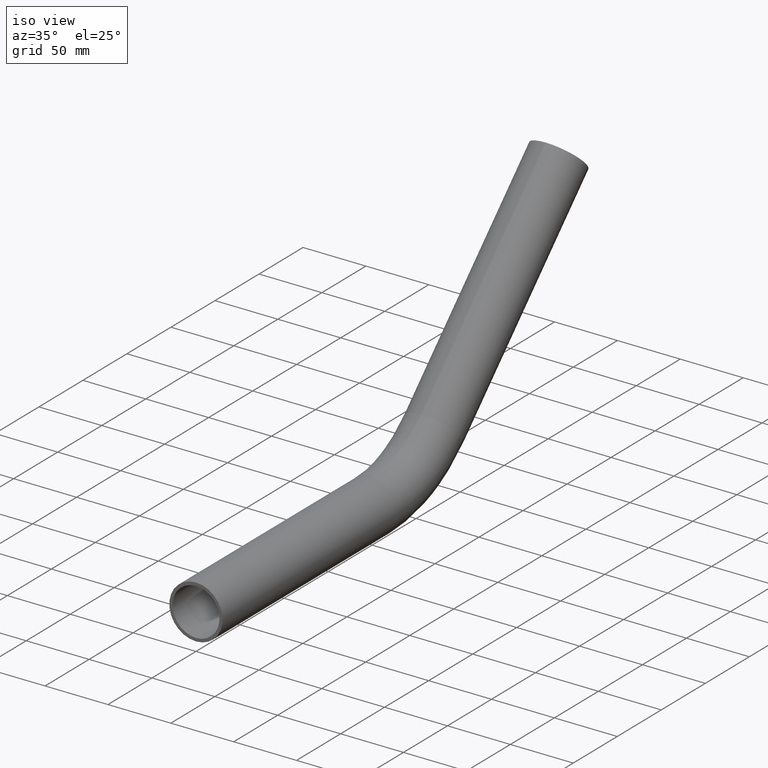
[diagram: clean part render]
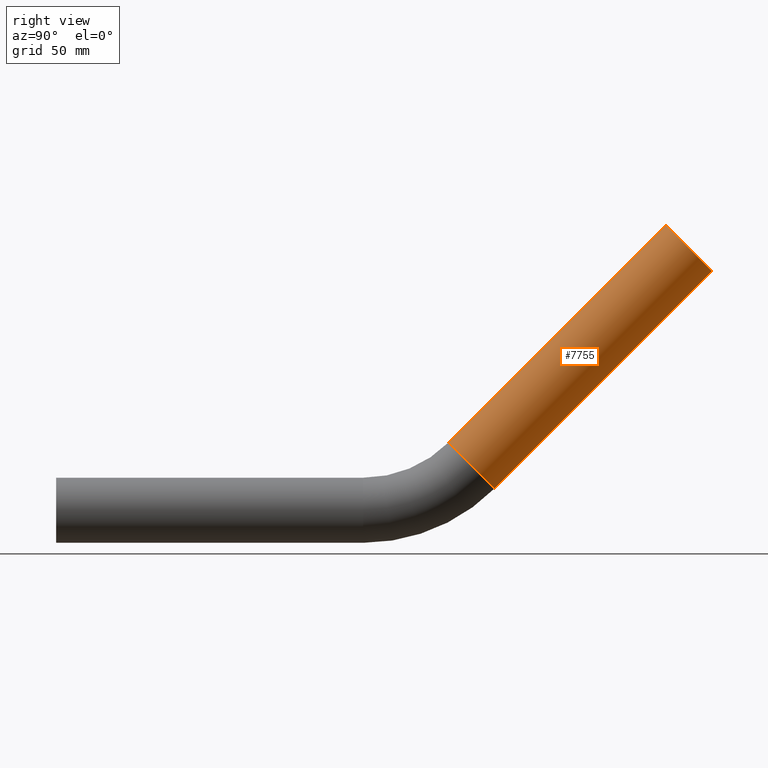
[diagram: tour spotlight — one face highlighted and labeled with its STEP entity id]
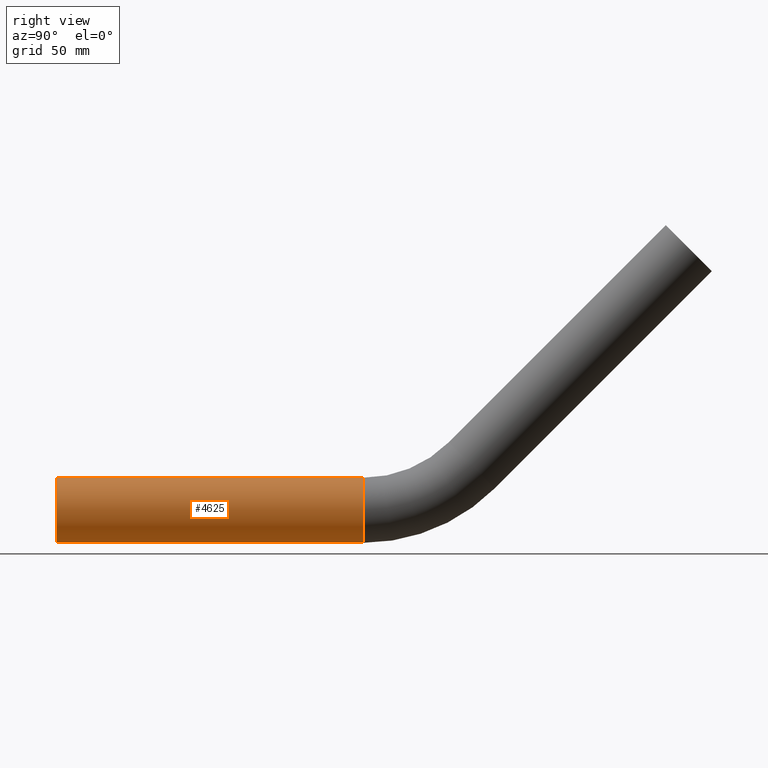
[diagram: tour spotlight — one face highlighted and labeled with its STEP entity id]
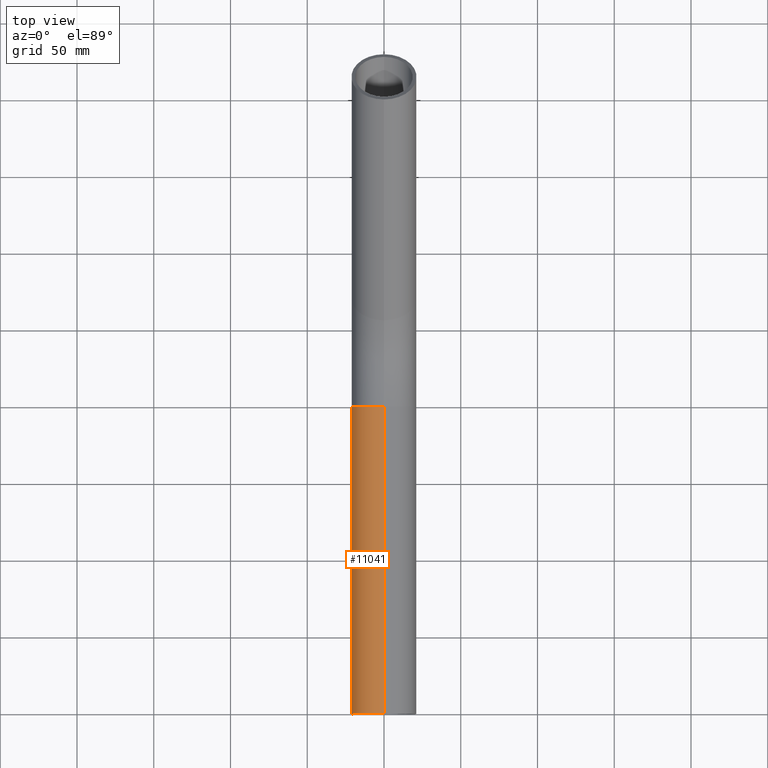
[diagram: tour spotlight — one face highlighted and labeled with its STEP entity id]
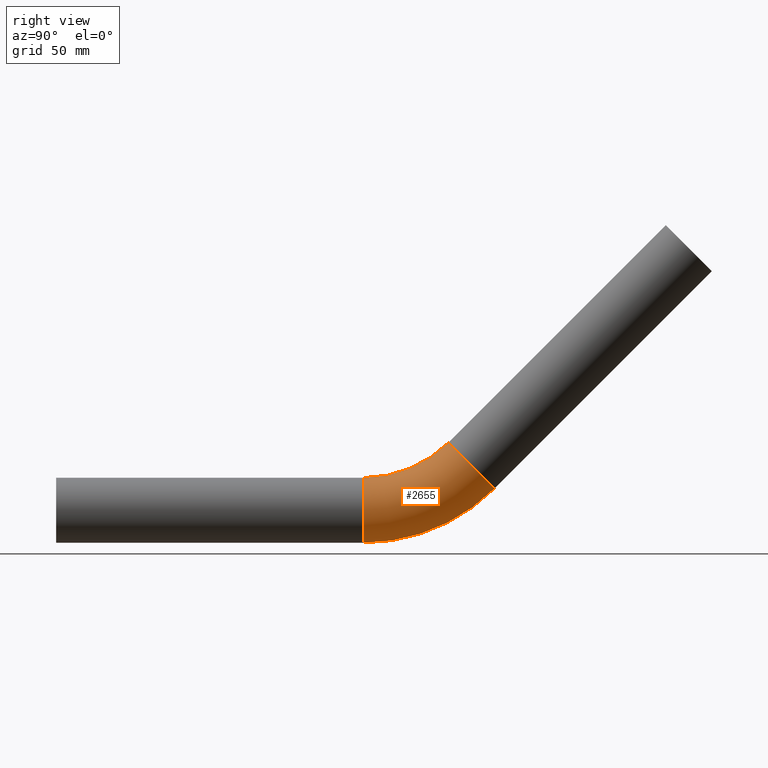
[diagram: tour spotlight — one face highlighted and labeled with its STEP entity id]
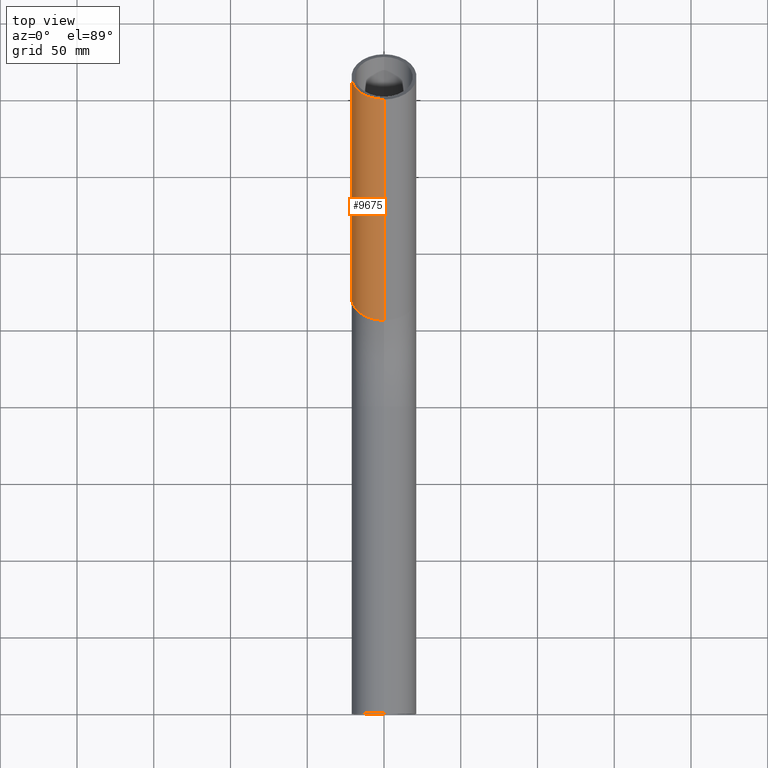
[diagram: tour spotlight — one face highlighted and labeled with its STEP entity id]
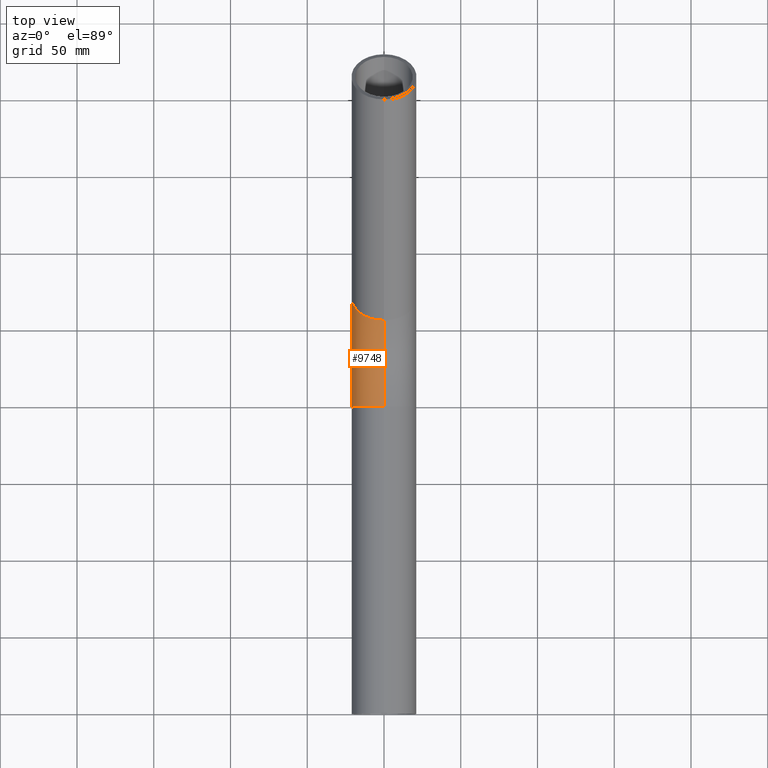
[diagram: tour spotlight — one face highlighted and labeled with its STEP entity id]
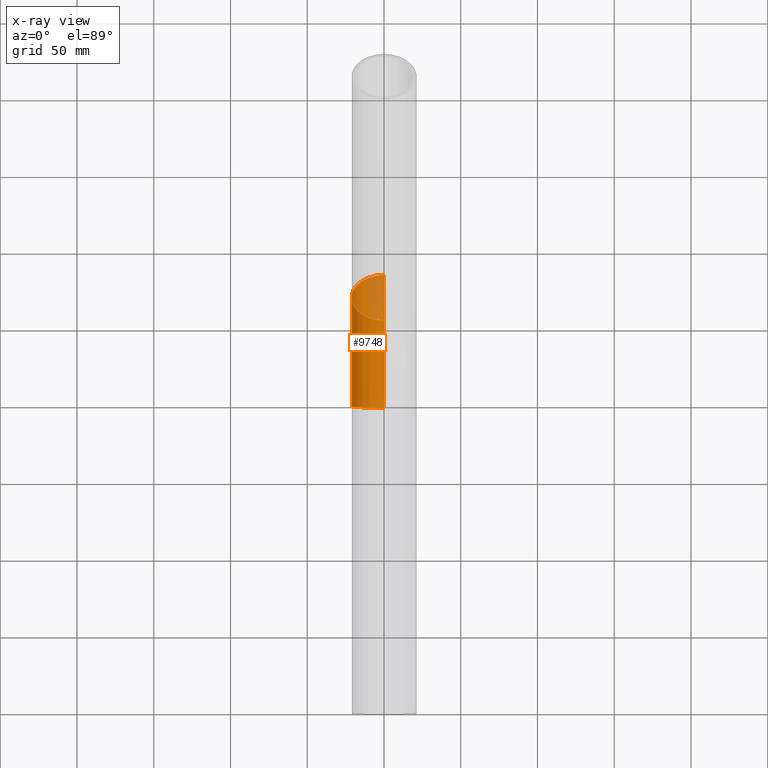
[diagram: x-ray of the same camera — body ghosted, this tour face saturated]
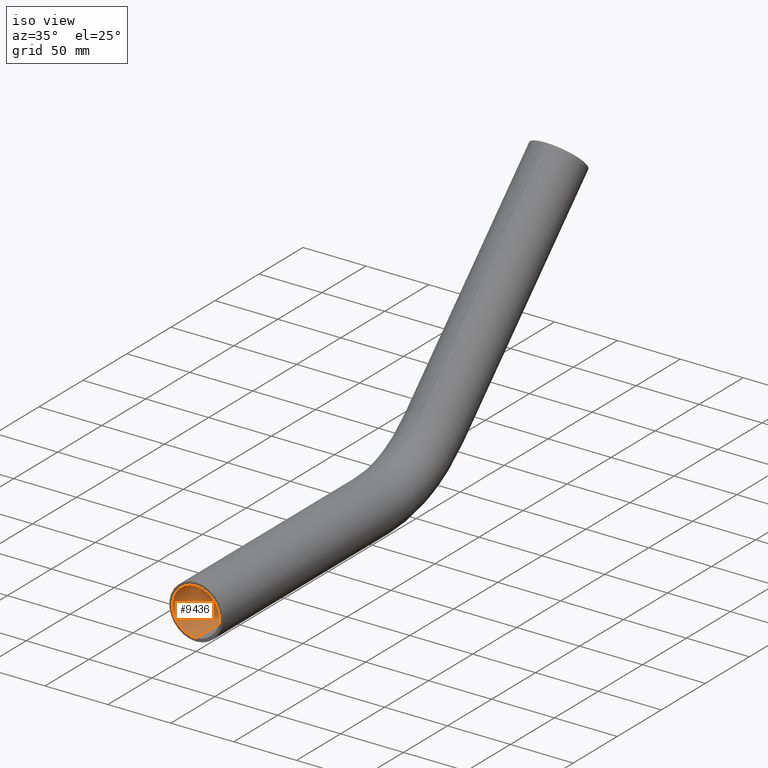
[diagram: tour spotlight — one face highlighted and labeled with its STEP entity id]
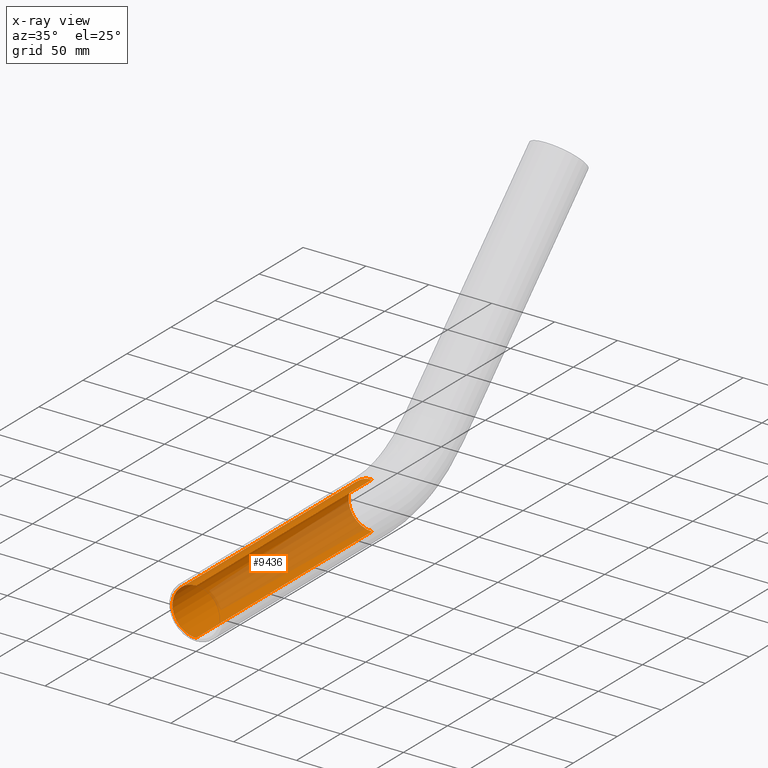
[diagram: x-ray of the same camera — body ghosted, this tour face saturated]
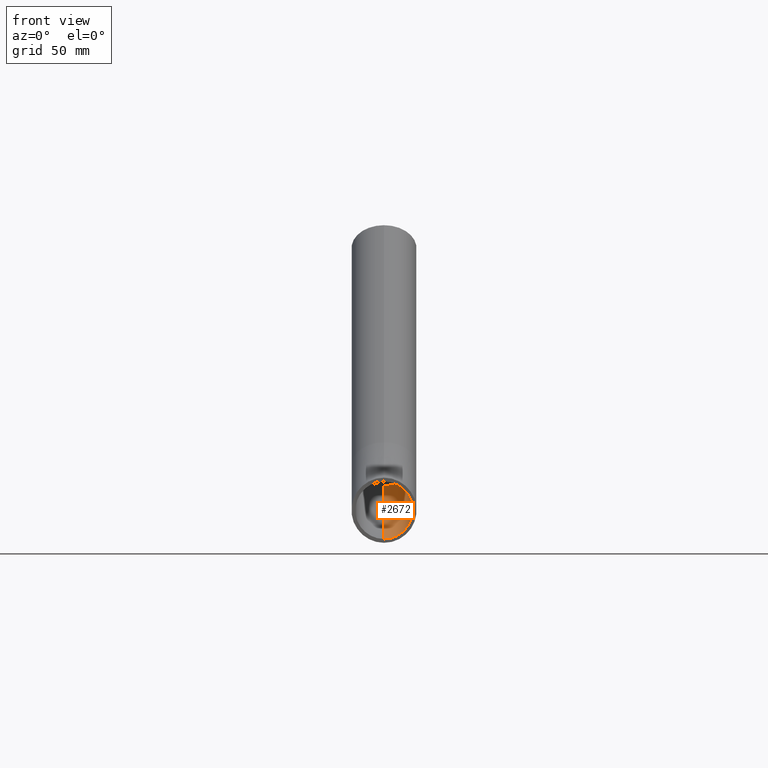
[diagram: tour spotlight — one face highlighted and labeled with its STEP entity id]
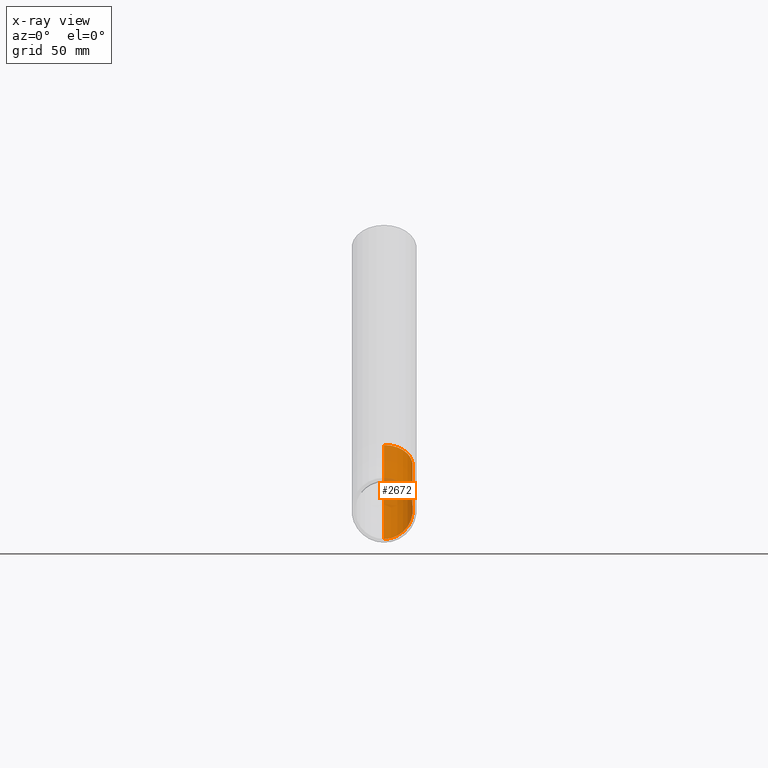
[diagram: x-ray of the same camera — body ghosted, this tour face saturated]
A machine part: a face-by-face anatomy tour. The part has 236 B-rep faces; the first image is the clean iso view, then the 8 largest visible faces are spotlighted one at a time (largest first), each with its STEP entity span.

Face 1 — right view, entity #7755. In plain terms, the highlighted cylindrical surface (edge-blend (fillet) strip) has radius 21.2 mm, axis along (0, 0.7071, 0.7071).
Definition (entity closure, byte-faithful):
#44 = DIRECTION ( 'NONE',  ( 0.0000000000000000000, 0.7071067811865462400, 0.7071067811865487900 ) ) ;
#277 = VERTEX_POINT ( 'NONE', #1705 ) ;
#735 = CYLINDRICAL_SURFACE ( 'NONE', #1268, 21.19999999999999200 ) ;
#907 = CARTESIAN_POINT ( 'NONE',  ( 0.0000000000000000000, 255.7200143575000800, 44.27998564250015100 ) ) ;
#972 = ORIENTED_EDGE ( 'NONE', *, *, #9818, .F. ) ;
#1268 = AXIS2_PLACEMENT_3D ( 'NONE', #3591, #9565, #3473 ) ;
#1705 = CARTESIAN_POINT ( 'NONE',  ( 2.596251214192388800E-015, 427.1226981171189400, 155.7200143575003300 ) ) ;
#1709 = VERTEX_POINT ( 'NONE', #907 ) ;
#2690 = CARTESIAN_POINT ( 'NONE',  ( 0.0000000000000000000, 412.1320343559641500, 170.7106781186551000 ) ) ;
#3097 = DIRECTION ( 'NONE',  ( 0.0000000000000000000, 0.7071067811865462400, 0.7071067811865489100 ) ) ;
#3151 = CARTESIAN_POINT ( 'NONE',  ( 0.0000000000000000000, 397.1413705948093000, 185.7013418798098900 ) ) ;
#3250 = AXIS2_PLACEMENT_3D ( 'NONE', #2690, #10488, #7892 ) ;
#3473 = DIRECTION ( 'NONE',  ( 0.0000000000000000000, -0.7071067811865483500, 0.7071067811865464600 ) ) ;
#3591 = CARTESIAN_POINT ( 'NONE',  ( 0.0000000000000000000, 270.7106781186549300, 29.28932188134538000 ) ) ;
#3634 = AXIS2_PLACEMENT_3D ( 'NONE', #10315, #44, #6842 ) ;
#3892 = ORIENTED_EDGE ( 'NONE', *, *, #8893, .T. ) ;
#4281 = EDGE_CURVE ( 'NONE', #5062, #277, #6091, .T. ) ;
#4723 = CIRCLE ( 'NONE', #3634, 21.19999999999999200 ) ;
#4960 = CARTESIAN_POINT ( 'NONE',  ( 2.596251214192388800E-015, 285.7013418798097200, 14.29865812019060400 ) ) ;
#5062 = VERTEX_POINT ( 'NONE', #3151 ) ;
#5687 = ORIENTED_EDGE ( 'NONE', *, *, #9980, .T. ) ;
#5926 = LINE ( 'NONE', #9144, #11074 ) ;
#6091 = CIRCLE ( 'NONE', #3250, 21.19999999999999900 ) ;
#6842 = DIRECTION ( 'NONE',  ( 0.0000000000000000000, -0.7071067811865483500, 0.7071067811865464600 ) ) ;
#7572 = FACE_OUTER_BOUND ( 'NONE', #8713, .T. ) ;
#7755 = ADVANCED_FACE ( 'NONE', ( #7572 ), #735, .T. ) ;
#7892 = DIRECTION ( 'NONE',  ( 0.0000000000000000000, -0.7071067811865481300, 0.7071067811865469100 ) ) ;
#8510 = VECTOR ( 'NONE', #3097, 999.9999999999998900 ) ;
#8713 = EDGE_LOOP ( 'NONE', ( #5687, #3892, #10666, #972 ) ) ;
#8893 = EDGE_CURVE ( 'NONE', #10981, #277, #10672, .T. ) ;
#9144 = CARTESIAN_POINT ( 'NONE',  ( 0.0000000000000000000, 255.7200143575000800, 44.27998564250015800 ) ) ;
#9565 = DIRECTION ( 'NONE',  ( 0.0000000000000000000, 0.7071067811865462400, 0.7071067811865487900 ) ) ;
#9818 = EDGE_CURVE ( 'NONE', #1709, #5062, #5926, .T. ) ;
#9916 = CARTESIAN_POINT ( 'NONE',  ( 2.596251214192388800E-015, 285.7013418798097200, 14.29865812019059800 ) ) ;
#9980 = EDGE_CURVE ( 'NONE', #1709, #10981, #4723, .T. ) ;
#10315 = CARTESIAN_POINT ( 'NONE',  ( 0.0000000000000000000, 270.7106781186549300, 29.28932188134538000 ) ) ;
#10488 = DIRECTION ( 'NONE',  ( 0.0000000000000000000, 0.7071067811865462400, 0.7071067811865487900 ) ) ;
#10666 = ORIENTED_EDGE ( 'NONE', *, *, #4281, .F. ) ;
#10672 = LINE ( 'NONE', #9916, #8510 ) ;
#10981 = VERTEX_POINT ( 'NONE', #4960 ) ;
#11049 = DIRECTION ( 'NONE',  ( 0.0000000000000000000, 0.7071067811865462400, 0.7071067811865489100 ) ) ;
#11074 = VECTOR ( 'NONE', #11049, 999.9999999999998900 ) ;

Face 2 — right view, entity #4625. In plain terms, the highlighted cylindrical surface (edge-blend (fillet) strip) has radius 21.2 mm, axis along (-0, -1, -0).
Definition (entity closure, byte-faithful):
#65 = EDGE_CURVE ( 'NONE', #196, #5295, #9588, .T. ) ;
#196 = VERTEX_POINT ( 'NONE', #9969 ) ;
#202 = AXIS2_PLACEMENT_3D ( 'NONE', #10364, #1795, #3518 ) ;
#216 = EDGE_CURVE ( 'NONE', #10763, #6479, #6740, .T. ) ;
#574 = EDGE_CURVE ( 'NONE', #10763, #196, #2602, .T. ) ;
#906 = DIRECTION ( 'NONE',  ( -0.0000000000000000000, -1.000000000000000000, -0.0000000000000000000 ) ) ;
#980 = CARTESIAN_POINT ( 'NONE',  ( 0.0000000000000000000, 200.0000000000000000, -21.19999999999999900 ) ) ;
#1276 = CARTESIAN_POINT ( 'NONE',  ( 2.596251214192388800E-015, 200.0000000000000000, 21.19999999999999900 ) ) ;
#1322 = ORIENTED_EDGE ( 'NONE', *, *, #574, .T. ) ;
#1771 = DIRECTION ( 'NONE',  ( 0.0000000000000000000, 0.0000000000000000000, -1.000000000000000000 ) ) ;
#1795 = DIRECTION ( 'NONE',  ( 0.0000000000000000000, 1.000000000000000000, 0.0000000000000000000 ) ) ;
#2241 = LINE ( 'NONE', #980, #8269 ) ;
#2474 = DIRECTION ( 'NONE',  ( 0.0000000000000000000, 0.0000000000000000000, 1.000000000000000000 ) ) ;
#2602 = LINE ( 'NONE', #1276, #7268 ) ;
#3518 = DIRECTION ( 'NONE',  ( 0.0000000000000000000, 0.0000000000000000000, 1.000000000000000000 ) ) ;
#4252 = CARTESIAN_POINT ( 'NONE',  ( 0.0000000000000000000, 200.0000000000000000, 0.0000000000000000000 ) ) ;
#4445 = CARTESIAN_POINT ( 'NONE',  ( 0.0000000000000000000, 0.0000000000000000000, -21.19999999999999900 ) ) ;
#4623 = CYLINDRICAL_SURFACE ( 'NONE', #8185, 21.19999999999999900 ) ;
#4625 = ADVANCED_FACE ( 'NONE', ( #10385 ), #4623, .T. ) ;
#4787 = DIRECTION ( 'NONE',  ( -0.0000000000000000000, -1.000000000000000000, -0.0000000000000000000 ) ) ;
#4890 = CARTESIAN_POINT ( 'NONE',  ( 2.596251214192388800E-015, 200.0000000000000000, 21.19999999999999900 ) ) ;
#5153 = CARTESIAN_POINT ( 'NONE',  ( 0.0000000000000000000, 200.0000000000000000, 0.0000000000000000000 ) ) ;
#5295 = VERTEX_POINT ( 'NONE', #4445 ) ;
#5763 = ORIENTED_EDGE ( 'NONE', *, *, #6066, .F. ) ;
#5832 = DIRECTION ( 'NONE',  ( 0.0000000000000000000, 1.000000000000000000, 0.0000000000000000000 ) ) ;
#6066 = EDGE_CURVE ( 'NONE', #6479, #5295, #2241, .T. ) ;
#6479 = VERTEX_POINT ( 'NONE', #9634 ) ;
#6740 = CIRCLE ( 'NONE', #9944, 21.19999999999999900 ) ;
#6967 = DIRECTION ( 'NONE',  ( -0.0000000000000000000, -1.000000000000000000, -0.0000000000000000000 ) ) ;
#7268 = VECTOR ( 'NONE', #4787, 1000.000000000000000 ) ;
#8185 = AXIS2_PLACEMENT_3D ( 'NONE', #5153, #906, #1771 ) ;
#8269 = VECTOR ( 'NONE', #6967, 1000.000000000000000 ) ;
#8417 = ORIENTED_EDGE ( 'NONE', *, *, #216, .F. ) ;
#8518 = EDGE_LOOP ( 'NONE', ( #8417, #1322, #10993, #5763 ) ) ;
#9588 = CIRCLE ( 'NONE', #202, 21.19999999999999900 ) ;
#9634 = CARTESIAN_POINT ( 'NONE',  ( 0.0000000000000000000, 200.0000000000000000, -21.19999999999999900 ) ) ;
#9944 = AXIS2_PLACEMENT_3D ( 'NONE', #4252, #5832, #2474 ) ;
#9969 = CARTESIAN_POINT ( 'NONE',  ( 2.596251214192388800E-015, 0.0000000000000000000, 21.19999999999999900 ) ) ;
#10364 = CARTESIAN_POINT ( 'NONE',  ( 0.0000000000000000000, 0.0000000000000000000, 0.0000000000000000000 ) ) ;
#10385 = FACE_OUTER_BOUND ( 'NONE', #8518, .T. ) ;
#10763 = VERTEX_POINT ( 'NONE', #4890 ) ;
#10993 = ORIENTED_EDGE ( 'NONE', *, *, #65, .T. ) ;

Face 3 — top view, entity #11041. In plain terms, the highlighted cylindrical surface (edge-blend (fillet) strip) has radius 21.2 mm, axis along (-0, -1, -0).
Definition (entity closure, byte-faithful):
#196 = VERTEX_POINT ( 'NONE', #9969 ) ;
#574 = EDGE_CURVE ( 'NONE', #10763, #196, #2602, .T. ) ;
#770 = CIRCLE ( 'NONE', #4593, 21.19999999999999900 ) ;
#980 = CARTESIAN_POINT ( 'NONE',  ( 0.0000000000000000000, 200.0000000000000000, -21.19999999999999900 ) ) ;
#1276 = CARTESIAN_POINT ( 'NONE',  ( 2.596251214192388800E-015, 200.0000000000000000, 21.19999999999999900 ) ) ;
#1452 = CYLINDRICAL_SURFACE ( 'NONE', #5569, 21.19999999999999900 ) ;
#2215 = ORIENTED_EDGE ( 'NONE', *, *, #6066, .T. ) ;
#2241 = LINE ( 'NONE', #980, #8269 ) ;
#2434 = ORIENTED_EDGE ( 'NONE', *, *, #574, .F. ) ;
#2602 = LINE ( 'NONE', #1276, #7268 ) ;
#2663 = DIRECTION ( 'NONE',  ( -0.0000000000000000000, -1.000000000000000000, -0.0000000000000000000 ) ) ;
#4445 = CARTESIAN_POINT ( 'NONE',  ( 0.0000000000000000000, 0.0000000000000000000, -21.19999999999999900 ) ) ;
#4593 = AXIS2_PLACEMENT_3D ( 'NONE', #10100, #10174, #4994 ) ;
#4787 = DIRECTION ( 'NONE',  ( -0.0000000000000000000, -1.000000000000000000, -0.0000000000000000000 ) ) ;
#4890 = CARTESIAN_POINT ( 'NONE',  ( 2.596251214192388800E-015, 200.0000000000000000, 21.19999999999999900 ) ) ;
#4994 = DIRECTION ( 'NONE',  ( 0.0000000000000000000, 0.0000000000000000000, 1.000000000000000000 ) ) ;
#5295 = VERTEX_POINT ( 'NONE', #4445 ) ;
#5500 = ORIENTED_EDGE ( 'NONE', *, *, #9286, .F. ) ;
#5563 = AXIS2_PLACEMENT_3D ( 'NONE', #8204, #10767, #7329 ) ;
#5569 = AXIS2_PLACEMENT_3D ( 'NONE', #9423, #2663, #10460 ) ;
#6066 = EDGE_CURVE ( 'NONE', #6479, #5295, #2241, .T. ) ;
#6479 = VERTEX_POINT ( 'NONE', #9634 ) ;
#6946 = FACE_OUTER_BOUND ( 'NONE', #10153, .T. ) ;
#6967 = DIRECTION ( 'NONE',  ( -0.0000000000000000000, -1.000000000000000000, -0.0000000000000000000 ) ) ;
#7268 = VECTOR ( 'NONE', #4787, 1000.000000000000000 ) ;
#7329 = DIRECTION ( 'NONE',  ( 0.0000000000000000000, 0.0000000000000000000, 1.000000000000000000 ) ) ;
#7537 = ORIENTED_EDGE ( 'NONE', *, *, #10849, .T. ) ;
#8204 = CARTESIAN_POINT ( 'NONE',  ( 0.0000000000000000000, 200.0000000000000000, 0.0000000000000000000 ) ) ;
#8269 = VECTOR ( 'NONE', #6967, 1000.000000000000000 ) ;
#9286 = EDGE_CURVE ( 'NONE', #6479, #10763, #10531, .T. ) ;
#9423 = CARTESIAN_POINT ( 'NONE',  ( 0.0000000000000000000, 200.0000000000000000, 0.0000000000000000000 ) ) ;
#9634 = CARTESIAN_POINT ( 'NONE',  ( 0.0000000000000000000, 200.0000000000000000, -21.19999999999999900 ) ) ;
#9969 = CARTESIAN_POINT ( 'NONE',  ( 2.596251214192388800E-015, 0.0000000000000000000, 21.19999999999999900 ) ) ;
#10100 = CARTESIAN_POINT ( 'NONE',  ( 0.0000000000000000000, 0.0000000000000000000, 0.0000000000000000000 ) ) ;
#10153 = EDGE_LOOP ( 'NONE', ( #2434, #5500, #2215, #7537 ) ) ;
#10174 = DIRECTION ( 'NONE',  ( 0.0000000000000000000, 1.000000000000000000, 0.0000000000000000000 ) ) ;
#10460 = DIRECTION ( 'NONE',  ( 0.0000000000000000000, 0.0000000000000000000, -1.000000000000000000 ) ) ;
#10531 = CIRCLE ( 'NONE', #5563, 21.19999999999999900 ) ;
#10763 = VERTEX_POINT ( 'NONE', #4890 ) ;
#10767 = DIRECTION ( 'NONE',  ( 0.0000000000000000000, 1.000000000000000000, 0.0000000000000000000 ) ) ;
#10849 = EDGE_CURVE ( 'NONE', #5295, #196, #770, .T. ) ;
#11041 = ADVANCED_FACE ( 'NONE', ( #6946 ), #1452, .T. ) ;

Face 4 — right view, entity #2655. In plain terms, the highlighted toroidal blend (fillet) surface has major radius 100 mm and minor (blend) radius 21.2 mm.
Definition (entity closure, byte-faithful):
#44 = DIRECTION ( 'NONE',  ( 0.0000000000000000000, 0.7071067811865462400, 0.7071067811865487900 ) ) ;
#216 = EDGE_CURVE ( 'NONE', #10763, #6479, #6740, .T. ) ;
#483 = EDGE_CURVE ( 'NONE', #10763, #1709, #9163, .T. ) ;
#523 = DIRECTION ( 'NONE',  ( 0.0000000000000000000, 0.0000000000000000000, -1.000000000000000000 ) ) ;
#907 = CARTESIAN_POINT ( 'NONE',  ( 0.0000000000000000000, 255.7200143575000800, 44.27998564250015100 ) ) ;
#1709 = VERTEX_POINT ( 'NONE', #907 ) ;
#1718 = ORIENTED_EDGE ( 'NONE', *, *, #4953, .T. ) ;
#1881 = EDGE_LOOP ( 'NONE', ( #4425, #1718, #8552, #10697 ) ) ;
#1909 = DIRECTION ( 'NONE',  ( 1.000000000000000000, 0.0000000000000000000, 0.0000000000000000000 ) ) ;
#2474 = DIRECTION ( 'NONE',  ( 0.0000000000000000000, 0.0000000000000000000, 1.000000000000000000 ) ) ;
#2655 = ADVANCED_FACE ( 'NONE', ( #8261 ), #2905, .T. ) ;
#2697 = DIRECTION ( 'NONE',  ( 0.0000000000000000000, 0.0000000000000000000, -1.000000000000000000 ) ) ;
#2843 = CARTESIAN_POINT ( 'NONE',  ( 0.0000000000000000000, 200.0000000000000000, 100.0000000000000000 ) ) ;
#2905 = TOROIDAL_SURFACE ( 'NONE', #8794, 100.0000000000000000, 21.19999999999999900 ) ;
#3634 = AXIS2_PLACEMENT_3D ( 'NONE', #10315, #44, #6842 ) ;
#4252 = CARTESIAN_POINT ( 'NONE',  ( 0.0000000000000000000, 200.0000000000000000, 0.0000000000000000000 ) ) ;
#4425 = ORIENTED_EDGE ( 'NONE', *, *, #216, .T. ) ;
#4723 = CIRCLE ( 'NONE', #3634, 21.19999999999999200 ) ;
#4750 = CARTESIAN_POINT ( 'NONE',  ( -2.596251214192388800E-015, 200.0000000000000000, 100.0000000000000000 ) ) ;
#4890 = CARTESIAN_POINT ( 'NONE',  ( 2.596251214192388800E-015, 200.0000000000000000, 21.19999999999999900 ) ) ;
#4953 = EDGE_CURVE ( 'NONE', #6479, #10981, #9173, .T. ) ;
#4960 = CARTESIAN_POINT ( 'NONE',  ( 2.596251214192388800E-015, 285.7013418798097200, 14.29865812019060400 ) ) ;
#5697 = AXIS2_PLACEMENT_3D ( 'NONE', #4750, #10768, #523 ) ;
#5832 = DIRECTION ( 'NONE',  ( 0.0000000000000000000, 1.000000000000000000, 0.0000000000000000000 ) ) ;
#6479 = VERTEX_POINT ( 'NONE', #9634 ) ;
#6740 = CIRCLE ( 'NONE', #9944, 21.19999999999999900 ) ;
#6842 = DIRECTION ( 'NONE',  ( 0.0000000000000000000, -0.7071067811865483500, 0.7071067811865464600 ) ) ;
#8261 = FACE_OUTER_BOUND ( 'NONE', #1881, .T. ) ;
#8552 = ORIENTED_EDGE ( 'NONE', *, *, #9980, .F. ) ;
#8610 = AXIS2_PLACEMENT_3D ( 'NONE', #9506, #1909, #2697 ) ;
#8794 = AXIS2_PLACEMENT_3D ( 'NONE', #2843, #10540, #8844 ) ;
#8844 = DIRECTION ( 'NONE',  ( 0.0000000000000000000, 0.0000000000000000000, -1.000000000000000000 ) ) ;
#9163 = CIRCLE ( 'NONE', #5697, 78.80000000000001100 ) ;
#9173 = CIRCLE ( 'NONE', #8610, 121.2000000000000000 ) ;
#9506 = CARTESIAN_POINT ( 'NONE',  ( 0.0000000000000000000, 200.0000000000000000, 100.0000000000000000 ) ) ;
#9634 = CARTESIAN_POINT ( 'NONE',  ( 0.0000000000000000000, 200.0000000000000000, -21.19999999999999900 ) ) ;
#9944 = AXIS2_PLACEMENT_3D ( 'NONE', #4252, #5832, #2474 ) ;
#9980 = EDGE_CURVE ( 'NONE', #1709, #10981, #4723, .T. ) ;
#10315 = CARTESIAN_POINT ( 'NONE',  ( 0.0000000000000000000, 270.7106781186549300, 29.28932188134538000 ) ) ;
#10540 = DIRECTION ( 'NONE',  ( 1.000000000000000000, 0.0000000000000000000, 0.0000000000000000000 ) ) ;
#10697 = ORIENTED_EDGE ( 'NONE', *, *, #483, .F. ) ;
#10763 = VERTEX_POINT ( 'NONE', #4890 ) ;
#10768 = DIRECTION ( 'NONE',  ( 1.000000000000000000, 0.0000000000000000000, 0.0000000000000000000 ) ) ;
#10981 = VERTEX_POINT ( 'NONE', #4960 ) ;

Face 5 — top view, entity #9675. In plain terms, the highlighted cylindrical surface (edge-blend (fillet) strip) has radius 21.2 mm, axis along (0, 0.7071, 0.7071).
Definition (entity closure, byte-faithful):
#78 = DIRECTION ( 'NONE',  ( 0.0000000000000000000, -0.7071067811865483500, 0.7071067811865464600 ) ) ;
#277 = VERTEX_POINT ( 'NONE', #1705 ) ;
#327 = FACE_OUTER_BOUND ( 'NONE', #11132, .T. ) ;
#542 = DIRECTION ( 'NONE',  ( 0.0000000000000000000, 0.7071067811865462400, 0.7071067811865487900 ) ) ;
#730 = ORIENTED_EDGE ( 'NONE', *, *, #9818, .T. ) ;
#907 = CARTESIAN_POINT ( 'NONE',  ( 0.0000000000000000000, 255.7200143575000800, 44.27998564250015100 ) ) ;
#1705 = CARTESIAN_POINT ( 'NONE',  ( 2.596251214192388800E-015, 427.1226981171189400, 155.7200143575003300 ) ) ;
#1709 = VERTEX_POINT ( 'NONE', #907 ) ;
#1988 = EDGE_CURVE ( 'NONE', #10981, #1709, #6114, .T. ) ;
#2195 = CYLINDRICAL_SURFACE ( 'NONE', #6463, 21.19999999999999200 ) ;
#2347 = DIRECTION ( 'NONE',  ( 0.0000000000000000000, -0.7071067811865481300, 0.7071067811865469100 ) ) ;
#3097 = DIRECTION ( 'NONE',  ( 0.0000000000000000000, 0.7071067811865462400, 0.7071067811865489100 ) ) ;
#3151 = CARTESIAN_POINT ( 'NONE',  ( 0.0000000000000000000, 397.1413705948093000, 185.7013418798098900 ) ) ;
#4013 = CARTESIAN_POINT ( 'NONE',  ( 0.0000000000000000000, 270.7106781186549300, 29.28932188134538000 ) ) ;
#4217 = CIRCLE ( 'NONE', #10111, 21.19999999999999900 ) ;
#4808 = EDGE_CURVE ( 'NONE', #277, #5062, #4217, .T. ) ;
#4960 = CARTESIAN_POINT ( 'NONE',  ( 2.596251214192388800E-015, 285.7013418798097200, 14.29865812019060400 ) ) ;
#5062 = VERTEX_POINT ( 'NONE', #3151 ) ;
#5582 = DIRECTION ( 'NONE',  ( 0.0000000000000000000, -0.7071067811865483500, 0.7071067811865464600 ) ) ;
#5926 = LINE ( 'NONE', #9144, #11074 ) ;
#6014 = CARTESIAN_POINT ( 'NONE',  ( 0.0000000000000000000, 270.7106781186549300, 29.28932188134538000 ) ) ;
#6114 = CIRCLE ( 'NONE', #9793, 21.19999999999999200 ) ;
#6463 = AXIS2_PLACEMENT_3D ( 'NONE', #4013, #542, #5582 ) ;
#6601 = DIRECTION ( 'NONE',  ( 0.0000000000000000000, 0.7071067811865462400, 0.7071067811865487900 ) ) ;
#6870 = DIRECTION ( 'NONE',  ( 0.0000000000000000000, 0.7071067811865462400, 0.7071067811865487900 ) ) ;
#7391 = CARTESIAN_POINT ( 'NONE',  ( 0.0000000000000000000, 412.1320343559641500, 170.7106781186551000 ) ) ;
#7884 = ORIENTED_EDGE ( 'NONE', *, *, #1988, .T. ) ;
#8510 = VECTOR ( 'NONE', #3097, 999.9999999999998900 ) ;
#8850 = ORIENTED_EDGE ( 'NONE', *, *, #8893, .F. ) ;
#8862 = ORIENTED_EDGE ( 'NONE', *, *, #4808, .F. ) ;
#8893 = EDGE_CURVE ( 'NONE', #10981, #277, #10672, .T. ) ;
#9144 = CARTESIAN_POINT ( 'NONE',  ( 0.0000000000000000000, 255.7200143575000800, 44.27998564250015800 ) ) ;
#9675 = ADVANCED_FACE ( 'NONE', ( #327 ), #2195, .T. ) ;
#9793 = AXIS2_PLACEMENT_3D ( 'NONE', #6014, #6870, #78 ) ;
#9818 = EDGE_CURVE ( 'NONE', #1709, #5062, #5926, .T. ) ;
#9916 = CARTESIAN_POINT ( 'NONE',  ( 2.596251214192388800E-015, 285.7013418798097200, 14.29865812019059800 ) ) ;
#10111 = AXIS2_PLACEMENT_3D ( 'NONE', #7391, #6601, #2347 ) ;
#10672 = LINE ( 'NONE', #9916, #8510 ) ;
#10981 = VERTEX_POINT ( 'NONE', #4960 ) ;
#11049 = DIRECTION ( 'NONE',  ( 0.0000000000000000000, 0.7071067811865462400, 0.7071067811865489100 ) ) ;
#11074 = VECTOR ( 'NONE', #11049, 999.9999999999998900 ) ;
#11132 = EDGE_LOOP ( 'NONE', ( #8850, #7884, #730, #8862 ) ) ;

Face 6 — top view, entity #9748. An x-ray twin of the same camera follows (body ghosted, this face saturated) — the face is partly hidden behind the body. In plain terms, the highlighted toroidal blend (fillet) surface has major radius 100 mm and minor (blend) radius 21.2 mm.
Definition (entity closure, byte-faithful):
#21 = ORIENTED_EDGE ( 'NONE', *, *, #1988, .F. ) ;
#78 = DIRECTION ( 'NONE',  ( 0.0000000000000000000, -0.7071067811865483500, 0.7071067811865464600 ) ) ;
#483 = EDGE_CURVE ( 'NONE', #10763, #1709, #9163, .T. ) ;
#523 = DIRECTION ( 'NONE',  ( 0.0000000000000000000, 0.0000000000000000000, -1.000000000000000000 ) ) ;
#907 = CARTESIAN_POINT ( 'NONE',  ( 0.0000000000000000000, 255.7200143575000800, 44.27998564250015100 ) ) ;
#1480 = DIRECTION ( 'NONE',  ( 0.0000000000000000000, 0.0000000000000000000, -1.000000000000000000 ) ) ;
#1709 = VERTEX_POINT ( 'NONE', #907 ) ;
#1909 = DIRECTION ( 'NONE',  ( 1.000000000000000000, 0.0000000000000000000, 0.0000000000000000000 ) ) ;
#1988 = EDGE_CURVE ( 'NONE', #10981, #1709, #6114, .T. ) ;
#2063 = ORIENTED_EDGE ( 'NONE', *, *, #4953, .F. ) ;
#2697 = DIRECTION ( 'NONE',  ( 0.0000000000000000000, 0.0000000000000000000, -1.000000000000000000 ) ) ;
#2920 = EDGE_LOOP ( 'NONE', ( #2063, #6050, #3930, #21 ) ) ;
#3930 = ORIENTED_EDGE ( 'NONE', *, *, #483, .T. ) ;
#4047 = CARTESIAN_POINT ( 'NONE',  ( 0.0000000000000000000, 200.0000000000000000, 100.0000000000000000 ) ) ;
#4750 = CARTESIAN_POINT ( 'NONE',  ( -2.596251214192388800E-015, 200.0000000000000000, 100.0000000000000000 ) ) ;
#4890 = CARTESIAN_POINT ( 'NONE',  ( 2.596251214192388800E-015, 200.0000000000000000, 21.19999999999999900 ) ) ;
#4918 = DIRECTION ( 'NONE',  ( 1.000000000000000000, 0.0000000000000000000, 0.0000000000000000000 ) ) ;
#4953 = EDGE_CURVE ( 'NONE', #6479, #10981, #9173, .T. ) ;
#4960 = CARTESIAN_POINT ( 'NONE',  ( 2.596251214192388800E-015, 285.7013418798097200, 14.29865812019060400 ) ) ;
#5563 = AXIS2_PLACEMENT_3D ( 'NONE', #8204, #10767, #7329 ) ;
#5697 = AXIS2_PLACEMENT_3D ( 'NONE', #4750, #10768, #523 ) ;
#6014 = CARTESIAN_POINT ( 'NONE',  ( 0.0000000000000000000, 270.7106781186549300, 29.28932188134538000 ) ) ;
#6050 = ORIENTED_EDGE ( 'NONE', *, *, #9286, .T. ) ;
#6114 = CIRCLE ( 'NONE', #9793, 21.19999999999999200 ) ;
#6214 = FACE_OUTER_BOUND ( 'NONE', #2920, .T. ) ;
#6479 = VERTEX_POINT ( 'NONE', #9634 ) ;
#6870 = DIRECTION ( 'NONE',  ( 0.0000000000000000000, 0.7071067811865462400, 0.7071067811865487900 ) ) ;
#7329 = DIRECTION ( 'NONE',  ( 0.0000000000000000000, 0.0000000000000000000, 1.000000000000000000 ) ) ;
#8204 = CARTESIAN_POINT ( 'NONE',  ( 0.0000000000000000000, 200.0000000000000000, 0.0000000000000000000 ) ) ;
#8267 = AXIS2_PLACEMENT_3D ( 'NONE', #4047, #4918, #1480 ) ;
#8610 = AXIS2_PLACEMENT_3D ( 'NONE', #9506, #1909, #2697 ) ;
#9163 = CIRCLE ( 'NONE', #5697, 78.80000000000001100 ) ;
#9173 = CIRCLE ( 'NONE', #8610, 121.2000000000000000 ) ;
#9286 = EDGE_CURVE ( 'NONE', #6479, #10763, #10531, .T. ) ;
#9304 = TOROIDAL_SURFACE ( 'NONE', #8267, 100.0000000000000000, 21.19999999999999900 ) ;
#9506 = CARTESIAN_POINT ( 'NONE',  ( 0.0000000000000000000, 200.0000000000000000, 100.0000000000000000 ) ) ;
#9634 = CARTESIAN_POINT ( 'NONE',  ( 0.0000000000000000000, 200.0000000000000000, -21.19999999999999900 ) ) ;
#9748 = ADVANCED_FACE ( 'NONE', ( #6214 ), #9304, .T. ) ;
#9793 = AXIS2_PLACEMENT_3D ( 'NONE', #6014, #6870, #78 ) ;
#10531 = CIRCLE ( 'NONE', #5563, 21.19999999999999900 ) ;
#10763 = VERTEX_POINT ( 'NONE', #4890 ) ;
#10767 = DIRECTION ( 'NONE',  ( 0.0000000000000000000, 1.000000000000000000, 0.0000000000000000000 ) ) ;
#10768 = DIRECTION ( 'NONE',  ( 1.000000000000000000, 0.0000000000000000000, 0.0000000000000000000 ) ) ;
#10981 = VERTEX_POINT ( 'NONE', #4960 ) ;

Face 7 — iso view, entity #9436. An x-ray twin of the same camera follows (body ghosted, this face saturated) — the face is partly hidden behind the body. In plain terms, the highlighted cylindrical surface (edge-blend (fillet) strip) has radius 18.7 mm, axis along (-0, -1, -0).
Definition (entity closure, byte-faithful):
#916 = CARTESIAN_POINT ( 'NONE',  ( 2.290089514405550900E-015, 0.0000000000000000000, 18.70000000000000300 ) ) ;
#1227 = VERTEX_POINT ( 'NONE', #10649 ) ;
#1693 = CIRCLE ( 'NONE', #6570, 18.70000000000000300 ) ;
#1821 = CIRCLE ( 'NONE', #3225, 18.70000000000000300 ) ;
#1891 = ORIENTED_EDGE ( 'NONE', *, *, #4390, .T. ) ;
#2056 = LINE ( 'NONE', #4900, #2323 ) ;
#2323 = VECTOR ( 'NONE', #7490, 1000.000000000000000 ) ;
#2969 = DIRECTION ( 'NONE',  ( 0.0000000000000000000, 1.000000000000000000, 0.0000000000000000000 ) ) ;
#3011 = CARTESIAN_POINT ( 'NONE',  ( 0.0000000000000000000, 200.0000000000000000, -18.70000000000000300 ) ) ;
#3072 = AXIS2_PLACEMENT_3D ( 'NONE', #4277, #3410, #3292 ) ;
#3225 = AXIS2_PLACEMENT_3D ( 'NONE', #4581, #2969, #8035 ) ;
#3292 = DIRECTION ( 'NONE',  ( 0.0000000000000000000, 0.0000000000000000000, -1.000000000000000000 ) ) ;
#3410 = DIRECTION ( 'NONE',  ( -0.0000000000000000000, -1.000000000000000000, -0.0000000000000000000 ) ) ;
#3427 = VERTEX_POINT ( 'NONE', #916 ) ;
#3932 = CARTESIAN_POINT ( 'NONE',  ( 0.0000000000000000000, 0.0000000000000000000, -18.70000000000000300 ) ) ;
#4277 = CARTESIAN_POINT ( 'NONE',  ( 0.0000000000000000000, 200.0000000000000000, 0.0000000000000000000 ) ) ;
#4348 = FACE_OUTER_BOUND ( 'NONE', #7502, .T. ) ;
#4390 = EDGE_CURVE ( 'NONE', #1227, #7451, #1821, .T. ) ;
#4581 = CARTESIAN_POINT ( 'NONE',  ( 0.0000000000000000000, 200.0000000000000000, 0.0000000000000000000 ) ) ;
#4633 = ORIENTED_EDGE ( 'NONE', *, *, #5111, .T. ) ;
#4900 = CARTESIAN_POINT ( 'NONE',  ( 2.290089514405550900E-015, 200.0000000000000000, 18.70000000000000300 ) ) ;
#5111 = EDGE_CURVE ( 'NONE', #7451, #3427, #2056, .T. ) ;
#5466 = DIRECTION ( 'NONE',  ( 0.0000000000000000000, 1.000000000000000000, 0.0000000000000000000 ) ) ;
#5819 = VECTOR ( 'NONE', #7240, 1000.000000000000000 ) ;
#6379 = DIRECTION ( 'NONE',  ( 0.0000000000000000000, 0.0000000000000000000, 1.000000000000000000 ) ) ;
#6570 = AXIS2_PLACEMENT_3D ( 'NONE', #8980, #5466, #6379 ) ;
#6976 = CARTESIAN_POINT ( 'NONE',  ( 2.290089514405550900E-015, 200.0000000000000000, 18.70000000000000300 ) ) ;
#7240 = DIRECTION ( 'NONE',  ( -0.0000000000000000000, -1.000000000000000000, -0.0000000000000000000 ) ) ;
#7277 = CYLINDRICAL_SURFACE ( 'NONE', #3072, 18.70000000000000300 ) ;
#7451 = VERTEX_POINT ( 'NONE', #6976 ) ;
#7490 = DIRECTION ( 'NONE',  ( -0.0000000000000000000, -1.000000000000000000, -0.0000000000000000000 ) ) ;
#7502 = EDGE_LOOP ( 'NONE', ( #1891, #4633, #8911, #8395 ) ) ;
#7522 = EDGE_CURVE ( 'NONE', #1227, #10035, #10960, .T. ) ;
#7592 = EDGE_CURVE ( 'NONE', #10035, #3427, #1693, .T. ) ;
#8035 = DIRECTION ( 'NONE',  ( 0.0000000000000000000, 0.0000000000000000000, 1.000000000000000000 ) ) ;
#8395 = ORIENTED_EDGE ( 'NONE', *, *, #7522, .F. ) ;
#8911 = ORIENTED_EDGE ( 'NONE', *, *, #7592, .F. ) ;
#8980 = CARTESIAN_POINT ( 'NONE',  ( 0.0000000000000000000, 0.0000000000000000000, 0.0000000000000000000 ) ) ;
#9436 = ADVANCED_FACE ( 'NONE', ( #4348 ), #7277, .F. ) ;
#10035 = VERTEX_POINT ( 'NONE', #3932 ) ;
#10649 = CARTESIAN_POINT ( 'NONE',  ( 0.0000000000000000000, 200.0000000000000000, -18.70000000000000300 ) ) ;
#10960 = LINE ( 'NONE', #3011, #5819 ) ;

Face 8 — front view, entity #2672. An x-ray twin of the same camera follows (body ghosted, this face saturated) — the face is partly hidden behind the body. In plain terms, the highlighted toroidal blend (fillet) surface has major radius 100 mm and minor (blend) radius 18.7 mm.
Definition (entity closure, byte-faithful):
#158 = CARTESIAN_POINT ( 'NONE',  ( 0.0000000000000000000, 200.0000000000000000, 100.0000000000000000 ) ) ;
#427 = EDGE_CURVE ( 'NONE', #7451, #1227, #10376, .T. ) ;
#726 = CIRCLE ( 'NONE', #7406, 81.30000000000001100 ) ;
#891 = TOROIDAL_SURFACE ( 'NONE', #9139, 100.0000000000000000, 18.70000000000000300 ) ;
#1227 = VERTEX_POINT ( 'NONE', #10649 ) ;
#1935 = VERTEX_POINT ( 'NONE', #4314 ) ;
#2010 = EDGE_CURVE ( 'NONE', #1227, #4521, #10138, .T. ) ;
#2672 = ADVANCED_FACE ( 'NONE', ( #7187 ), #891, .F. ) ;
#3192 = ORIENTED_EDGE ( 'NONE', *, *, #3724, .T. ) ;
#3415 = DIRECTION ( 'NONE',  ( 1.000000000000000000, 0.0000000000000000000, 0.0000000000000000000 ) ) ;
#3646 = DIRECTION ( 'NONE',  ( 0.0000000000000000000, 0.0000000000000000000, -1.000000000000000000 ) ) ;
#3724 = EDGE_CURVE ( 'NONE', #7451, #1935, #726, .T. ) ;
#4314 = CARTESIAN_POINT ( 'NONE',  ( 0.0000000000000000000, 257.4877813104664600, 42.51221868953378200 ) ) ;
#4521 = VERTEX_POINT ( 'NONE', #7409 ) ;
#4629 = CIRCLE ( 'NONE', #4850, 18.69999999999998900 ) ;
#4850 = AXIS2_PLACEMENT_3D ( 'NONE', #9976, #9834, #10936 ) ;
#6183 = CARTESIAN_POINT ( 'NONE',  ( 0.0000000000000000000, 200.0000000000000000, 0.0000000000000000000 ) ) ;
#6639 = AXIS2_PLACEMENT_3D ( 'NONE', #6183, #8783, #9069 ) ;
#6790 = ORIENTED_EDGE ( 'NONE', *, *, #2010, .F. ) ;
#6792 = EDGE_LOOP ( 'NONE', ( #6790, #8899, #3192, #7849 ) ) ;
#6876 = CARTESIAN_POINT ( 'NONE',  ( -2.290089514405550900E-015, 200.0000000000000000, 100.0000000000000000 ) ) ;
#6976 = CARTESIAN_POINT ( 'NONE',  ( 2.290089514405550900E-015, 200.0000000000000000, 18.70000000000000300 ) ) ;
#7013 = DIRECTION ( 'NONE',  ( 1.000000000000000000, 0.0000000000000000000, 0.0000000000000000000 ) ) ;
#7123 = AXIS2_PLACEMENT_3D ( 'NONE', #158, #7818, #3646 ) ;
#7187 = FACE_OUTER_BOUND ( 'NONE', #6792, .T. ) ;
#7406 = AXIS2_PLACEMENT_3D ( 'NONE', #6876, #3415, #9390 ) ;
#7409 = CARTESIAN_POINT ( 'NONE',  ( 2.290089514405550900E-015, 283.9335749268433300, 16.06642507315697100 ) ) ;
#7451 = VERTEX_POINT ( 'NONE', #6976 ) ;
#7818 = DIRECTION ( 'NONE',  ( 1.000000000000000000, 0.0000000000000000000, 0.0000000000000000000 ) ) ;
#7849 = ORIENTED_EDGE ( 'NONE', *, *, #8260, .T. ) ;
#8002 = DIRECTION ( 'NONE',  ( 0.0000000000000000000, 0.0000000000000000000, -1.000000000000000000 ) ) ;
#8222 = CARTESIAN_POINT ( 'NONE',  ( 0.0000000000000000000, 200.0000000000000000, 100.0000000000000000 ) ) ;
#8260 = EDGE_CURVE ( 'NONE', #1935, #4521, #4629, .T. ) ;
#8783 = DIRECTION ( 'NONE',  ( 0.0000000000000000000, 1.000000000000000000, 0.0000000000000000000 ) ) ;
#8899 = ORIENTED_EDGE ( 'NONE', *, *, #427, .F. ) ;
#9069 = DIRECTION ( 'NONE',  ( 0.0000000000000000000, 0.0000000000000000000, 1.000000000000000000 ) ) ;
#9139 = AXIS2_PLACEMENT_3D ( 'NONE', #8222, #7013, #8002 ) ;
#9390 = DIRECTION ( 'NONE',  ( 0.0000000000000000000, 0.0000000000000000000, -1.000000000000000000 ) ) ;
#9834 = DIRECTION ( 'NONE',  ( 0.0000000000000000000, 0.7071067811865462400, 0.7071067811865487900 ) ) ;
#9976 = CARTESIAN_POINT ( 'NONE',  ( 0.0000000000000000000, 270.7106781186549300, 29.28932188134538000 ) ) ;
#10138 = CIRCLE ( 'NONE', #7123, 118.7000000000000000 ) ;
#10376 = CIRCLE ( 'NONE', #6639, 18.70000000000000300 ) ;
#10649 = CARTESIAN_POINT ( 'NONE',  ( 0.0000000000000000000, 200.0000000000000000, -18.70000000000000300 ) ) ;
#10936 = DIRECTION ( 'NONE',  ( 0.0000000000000000000, -0.7071067811865482400, 0.7071067811865468000 ) ) ;